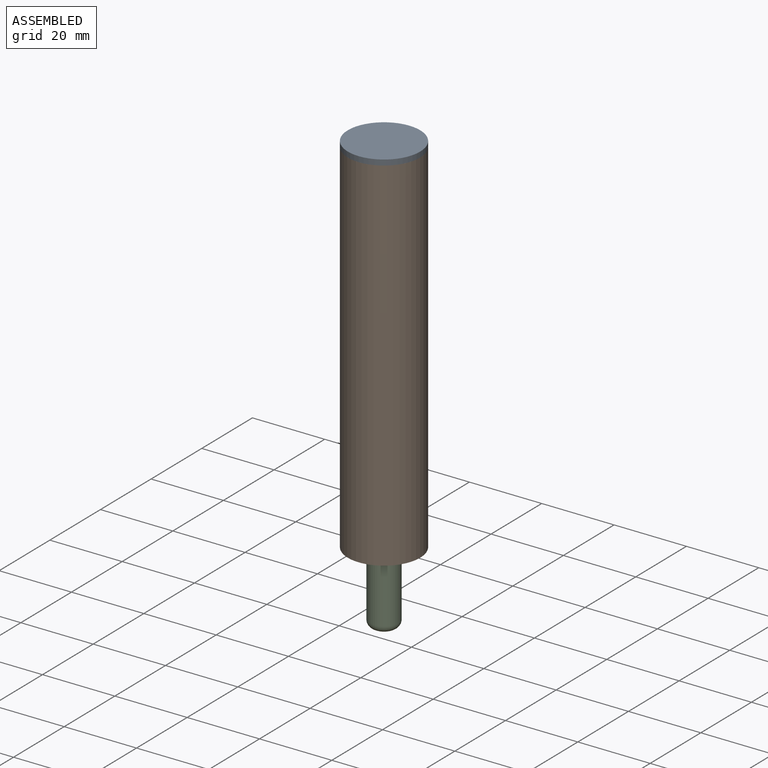
[diagram: assembled view]
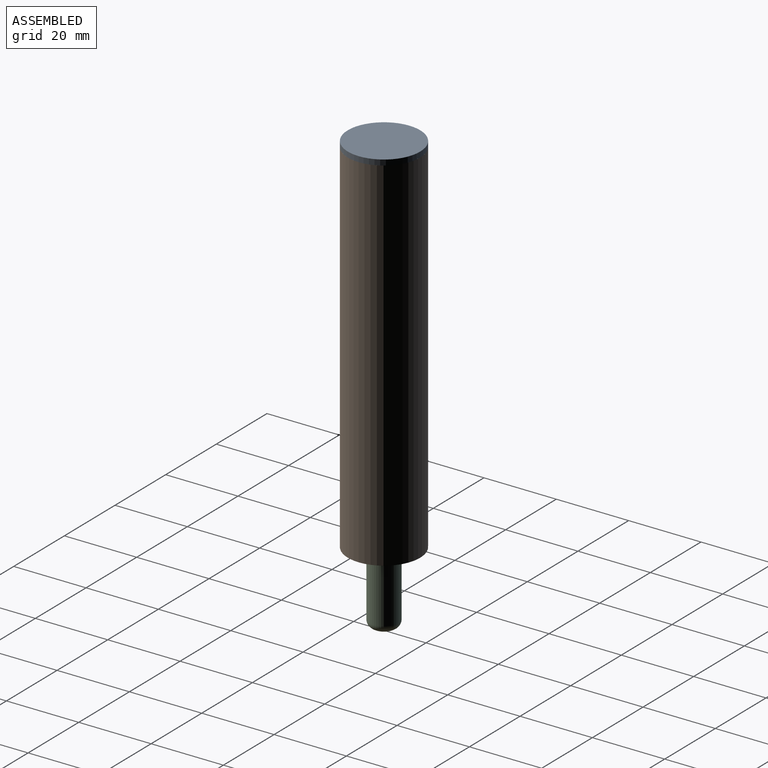
[diagram: assembled view, second angle]
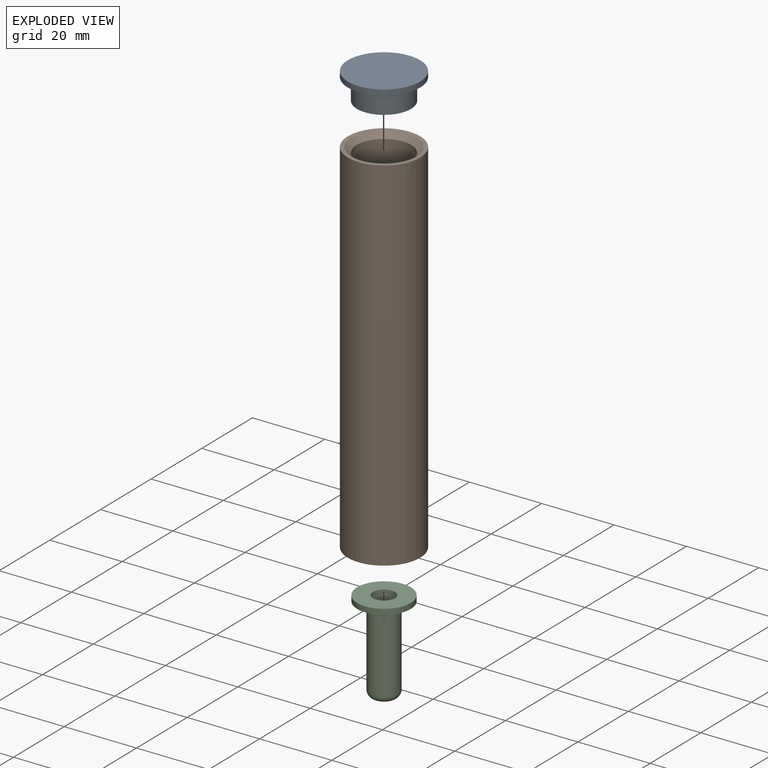
[diagram: exploded view]
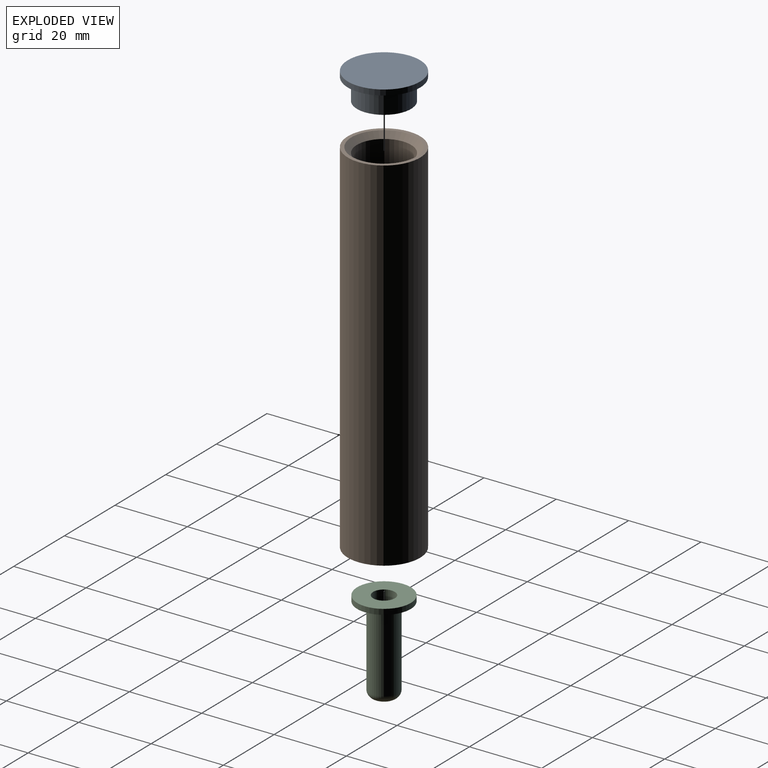
[diagram: exploded view, second angle]
ASSEMBLY  parts=3 mates=2
PART A: 5 faces, bbox 20x20x7.5 mm
  f0: plane 20x20mm, normal (0,0,-1), area 314.2mm2, adj f1
  f1: cylinder r=10mm len=20mm, axis (0,0,-1), area 94.2mm2, adj f0,f2
  f2: plane 20x20mm, normal (0,0,1), area 137.4mm2, adj f1,f3
  f3: cylinder r=7.5mm len=15mm, axis (0,0,-1), area 282.7mm2, adj f2,f4
  f4: plane 15x15mm, normal (0,0,1), area 176.7mm2, adj f3
PART B: 7 faces, bbox 20x20x100 mm
  f0: cylinder r=10mm len=100mm, axis (0,0,-1), area 6283.2mm2, adj f1,f2
  f1: plane 20x20mm, normal (0,0,1), area 59.7mm2, adj f0,f6
  f2: plane 20x20mm, normal (0,0,-1), area 262.6mm2, adj f0,f5
  f3: cylinder r=7.5mm len=94.5mm, axis (0,0,1), area 4453.2mm2, adj f4,f6
  f4: plane 15x15mm, normal (0,0,1), area 125.2mm2, adj f3,f5
  f5: cylinder r=4.05mm len=8.1mm, axis (0,0,-1), area 101.8mm2, adj f2,f4
  f6: cone r=7.5mm half-angle=45deg, axis (0,0,1), area 110mm2, adj f1,f3
PART C: 8 faces, bbox 14.8x14.8x25.5 mm
  f0: cylinder r=7.4mm len=14.8mm, axis (0,0,-1), area 69.7mm2, adj f1,f2
  f1: plane 14.8x14.8mm, normal (0,0,1), area 121.8mm2, adj f0,f3
  f2: plane 14.8x14.8mm, normal (0,0,-1), area 143.8mm2, adj f0,f5
  f3: cylinder r=4mm len=22mm, axis (0,0,-1), area 552.9mm2, adj f1,f7
  f4: plane 4x4mm, normal (0,0,1), area 12.6mm2, adj f7
  f5: cylinder r=3mm len=22mm, axis (0,0,-1), area 414.7mm2, adj f2,f6
  f6: plane 6x6mm, normal (0,0,-1), area 28.3mm2, adj f5
  f7: torus R=2mm, axis (0,0,1), area 64.6mm2, adj f3,f4
PLACE A rot(axis=(1,0,0),180deg) t=(12.58,11.2,57.41)mm
PLACE B t=(12.58,11.2,-44.09)mm
PLACE C rot(axis=(0,1,0),180deg) t=(12.58,11.2,-38.59)mm
MATE fastened C.f0 <-> B.f5  axis (0,0,-1) through (12.58,11.2,-40.09)mm
MATE fastened A.f1 <-> B.f5  axis (0,0,-1) through (12.58,11.2,55.91)mm
